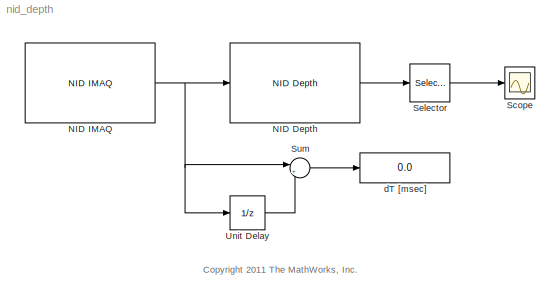
MODEL nid_depth
KIND model
BLOCK [Reference] NID Depth  REF=nid_lib/NID Depth
  Ports = [1, 1]
  SID = 129
  SourceBlock = nid_lib/NID Depth
  SourceType = NID Depth
  depthOutput = Depth
  viewer = off
BLOCK [Reference] NID IMAQ  REF=nid_lib/NID IMAQ
  Ports = [0, 1]
  SID = 130
  SourceBlock = nid_lib/NID IMAQ
  SourceType = NID IMAQ
  imaq_depth = on
  imaq_image = off
  imaq_ir = off
  imaq_motion = off
  imaq_sample_time = 1/30
  imaq_skeleton = off
  mirror_image = off
  view_point = off
BLOCK [Scope] Scope
  DataFormat = StructureWithTime
  Floating = off
  LimitDataPoints = off
  NumInputPorts = 1
  Ports = [1]
  SID = 97
  SampleTime = 0
  SaveName = ScopeData2
  TimeRange = 10
  YMin = 0
BLOCK [Selector] Selector
  IndexOptions = Index vector (dialog),Index vector (dialog)
  Indices = 480/2,640/2
  NumberOfDimensions = 2
  OutputSizes = 1,1
  Ports = [1, 1]
  SID = 133
BLOCK [Sum] Sum
  IconShape = round
  InputSameDT = off
  Inputs = |+-
  OutDataTypeStr = Inherit: Inherit via internal rule
  Ports = [2, 1]
  SID = 73
  SaturateOnIntegerOverflow = off
BLOCK [UnitDelay] Unit Delay
  InputProcessing = Elements as channels (sample based)
  SID = 74
  SampleTime = -1
BLOCK [Display] dT [msec]
  Decimation = 1
  Lockdown = off
  Ports = [1]
  SID = 134
ANNOTATION (root): <copyright redacted>
LINE NID Depth:1 -> Selector:1
NET NID IMAQ:1 -> NID Depth:1, Sum:1, Unit Delay:1
LINE Selector:1 -> Scope:1
LINE Sum:1 -> dT [msec]:1
LINE Unit Delay:1 -> Sum:2
note: NET lines group one-source signal fan-out (src -> all destinations, sorted); 1:1 wires keep LINE
